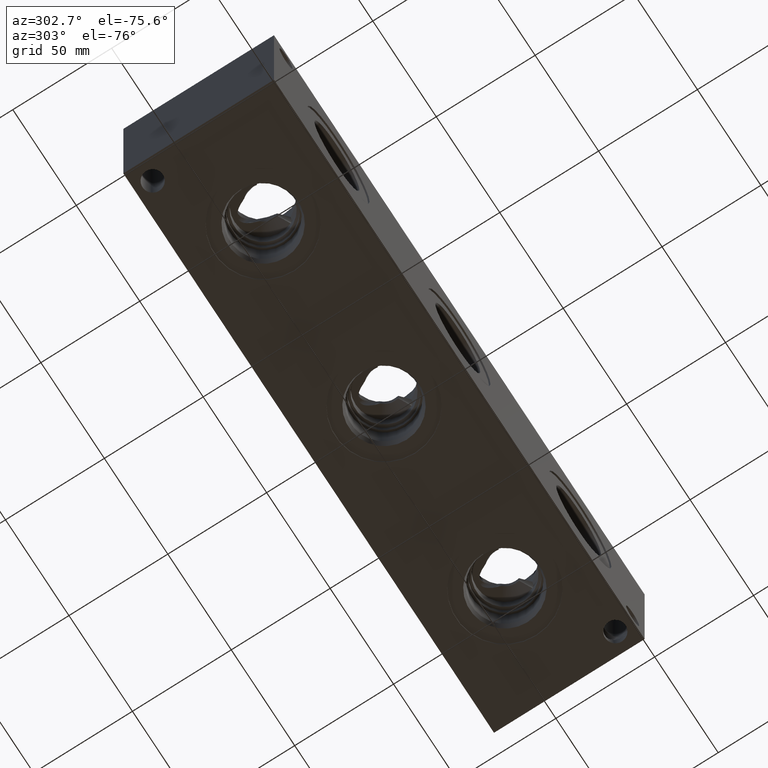
[diagram: clean part render]
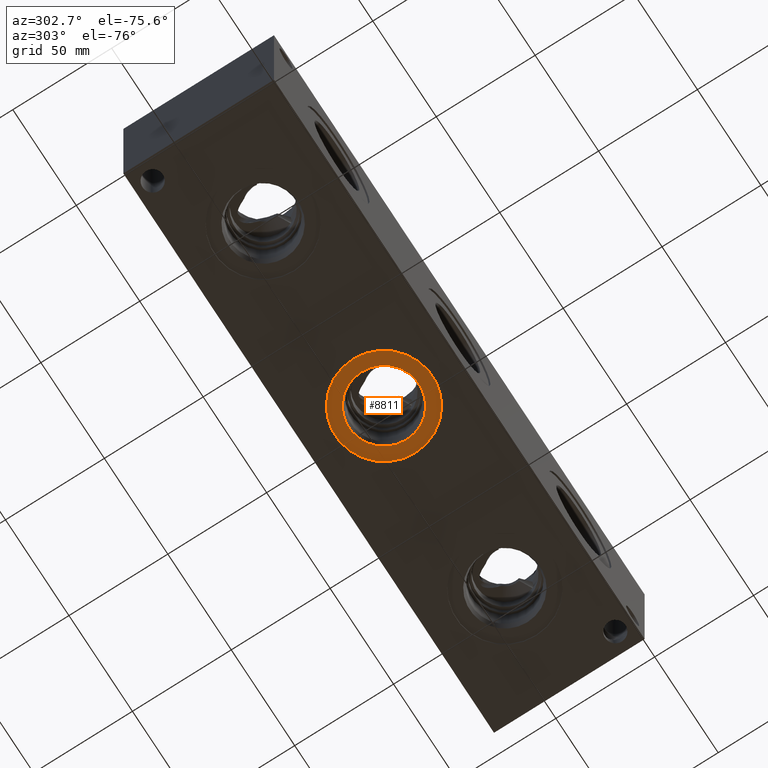
[diagram: same view with one face highlighted and labeled with its STEP entity id]
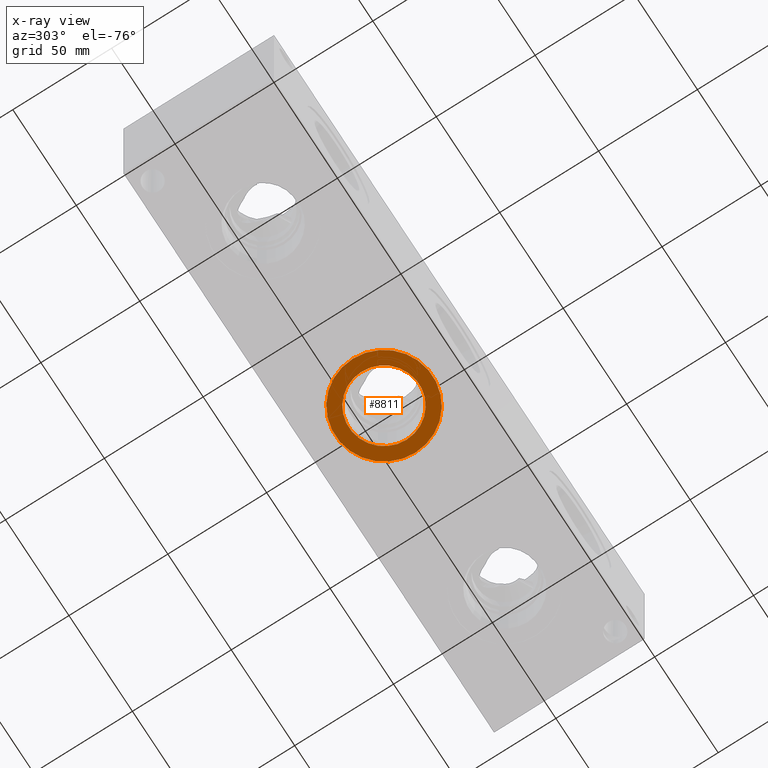
[diagram: x-ray of the same camera — body ghosted, the highlighted face saturated]
A machine part, auxiliary view. The second image highlights one B-rep face of the part: STEP entity #8811.
The next image is the same camera in x-ray: the body ghosted, the highlighted face saturated — about 0% of this face is hidden behind the body in this view.
In plain terms, the highlighted planar face has unit normal (0, 0, -1).
Its self-contained STEP definition (entity closure, byte-faithful):
#283=CIRCLE('',#9315,24.5618);
#284=CIRCLE('',#9316,24.5618);
#285=CIRCLE('',#9317,17.7546);
#440=FACE_BOUND('',#1683,.T.);
#1179=FACE_OUTER_BOUND('',#1682,.T.);
#1682=EDGE_LOOP('',(#7395,#7396));
#1683=EDGE_LOOP('',(#7397));
#4018=VERTEX_POINT('',#15228);
#4019=VERTEX_POINT('',#15229);
#4020=VERTEX_POINT('',#15232);
#5181=EDGE_CURVE('',#4018,#4019,#283,.T.);
#5182=EDGE_CURVE('',#4019,#4018,#284,.T.);
#5183=EDGE_CURVE('',#4020,#4020,#285,.T.);
#7395=ORIENTED_EDGE('',*,*,#5181,.T.);
#7396=ORIENTED_EDGE('',*,*,#5182,.T.);
#7397=ORIENTED_EDGE('',*,*,#5183,.F.);
#8117=PLANE('',#9314);
#8811=ADVANCED_FACE('',(#1179,#440),#8117,.T.);
#9314=AXIS2_PLACEMENT_3D('',#15227,#11013,#11014);
#9315=AXIS2_PLACEMENT_3D('',#15230,#11015,#11016);
#9316=AXIS2_PLACEMENT_3D('',#15231,#11017,#11018);
#9317=AXIS2_PLACEMENT_3D('',#15233,#11019,#11020);
#11013=DIRECTION('center_axis',(0.,0.,-1.));
#11014=DIRECTION('ref_axis',(1.,0.,0.));
#11015=DIRECTION('center_axis',(0.,0.,-1.));
#11016=DIRECTION('ref_axis',(1.,0.,0.));
#11017=DIRECTION('center_axis',(0.,0.,-1.));
#11018=DIRECTION('ref_axis',(1.,0.,0.));
#11019=DIRECTION('center_axis',(0.,0.,-1.));
#11020=DIRECTION('ref_axis',(1.,0.,0.));
#15227=CARTESIAN_POINT('Origin',(146.05,38.1,0.7874));
#15228=CARTESIAN_POINT('',(170.6118,38.1,0.7874));
#15229=CARTESIAN_POINT('',(121.4882,38.1,0.7874));
#15230=CARTESIAN_POINT('Origin',(146.05,38.1,0.7874));
#15231=CARTESIAN_POINT('Origin',(146.05,38.1,0.7874));
#15232=CARTESIAN_POINT('',(128.2954,38.1,0.7874));
#15233=CARTESIAN_POINT('Origin',(146.05,38.1,0.7874));